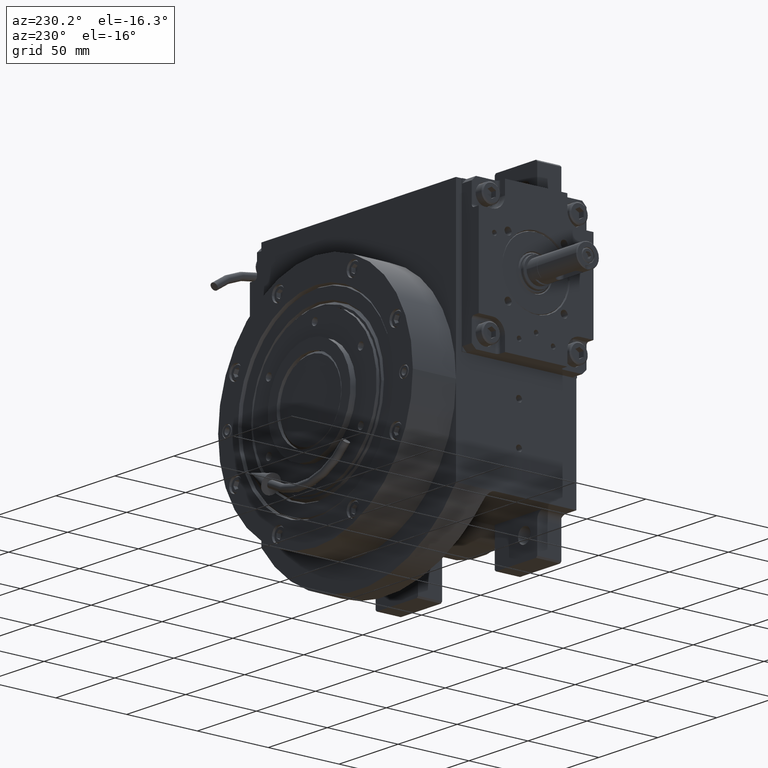
[diagram: clean part render]
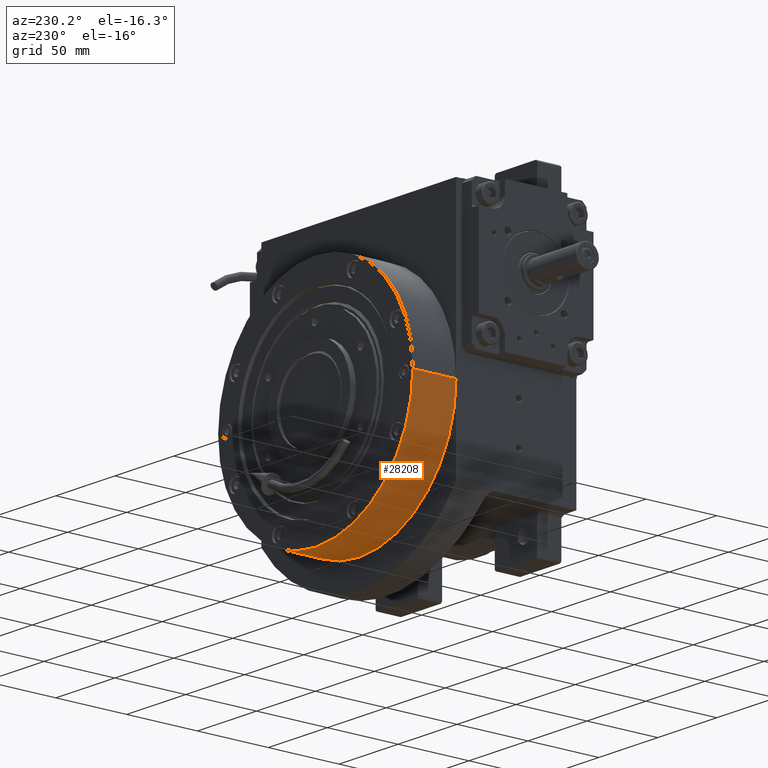
[diagram: same view with one face highlighted and labeled with its STEP entity id]
A machine part, auxiliary view. The second image highlights one B-rep face of the part: STEP entity #28208.
In plain terms, the highlighted cylindrical surface (partial cylindrical patch) has radius 82.5 mm, axis along (0, 1, 0).
Its self-contained STEP definition (entity closure, byte-faithful):
#1393 = AXIS2_PLACEMENT_3D ( 'NONE', #59274, #30482, #24634 ) ;
#1533 = CARTESIAN_POINT ( 'NONE',  ( 0.000000000000000000, 0.000000000000000000, 0.000000000000000000 ) ) ;
#1662 = AXIS2_PLACEMENT_3D ( 'NONE', #56746, #33137, #12467 ) ;
#1780 = EDGE_LOOP ( 'NONE', ( #7516, #18580, #12144, #51405 ) ) ;
#3109 = CARTESIAN_POINT ( 'NONE',  ( 82.49999999999998579, -1.010322486831990379E-14, 0.000000000000000000 ) ) ;
#4820 = EDGE_CURVE ( 'NONE', #7385, #26422, #8313, .T. ) ;
#4902 = VERTEX_POINT ( 'NONE', #12836 ) ;
#7385 = VERTEX_POINT ( 'NONE', #59222 ) ;
#7516 = ORIENTED_EDGE ( 'NONE', *, *, #44457, .T. ) ;
#8313 = LINE ( 'NONE', #3109, #48546 ) ;
#10798 = LINE ( 'NONE', #34691, #27130 ) ;
#12144 = ORIENTED_EDGE ( 'NONE', *, *, #4820, .F. ) ;
#12467 = DIRECTION ( 'NONE',  ( 1.000000000000000000, 0.000000000000000000, 0.000000000000000000 ) ) ;
#12756 = CIRCLE ( 'NONE', #1393, 82.50000000000000000 ) ;
#12836 = CARTESIAN_POINT ( 'NONE',  ( -82.50000000000001421, 2.020633851199993078E-14, 30.49999999999999289 ) ) ;
#18580 = ORIENTED_EDGE ( 'NONE', *, *, #58928, .F. ) ;
#19386 = VERTEX_POINT ( 'NONE', #57383 ) ;
#24634 = DIRECTION ( 'NONE',  ( 1.000000000000000000, 0.000000000000000000, 0.000000000000000000 ) ) ;
#26422 = VERTEX_POINT ( 'NONE', #46921 ) ;
#27130 = VECTOR ( 'NONE', #44380, 1000.000000000000000 ) ;
#28208 = ADVANCED_FACE ( 'NONE', ( #45834 ), #40953, .T. ) ;
#28518 = CIRCLE ( 'NONE', #1662, 82.50000000000000000 ) ;
#30482 = DIRECTION ( 'NONE',  ( 0.000000000000000000, 0.000000000000000000, 1.000000000000000000 ) ) ;
#33137 = DIRECTION ( 'NONE',  ( 0.000000000000000000, 0.000000000000000000, 1.000000000000000000 ) ) ;
#34691 = CARTESIAN_POINT ( 'NONE',  ( -82.50000000000001421, 1.010322486831990379E-14, 0.000000000000000000 ) ) ;
#37055 = DIRECTION ( 'NONE',  ( 0.000000000000000000, 0.000000000000000000, 1.000000000000000000 ) ) ;
#40953 = CYLINDRICAL_SURFACE ( 'NONE', #58785, 82.50000000000000000 ) ;
#41903 = DIRECTION ( 'NONE',  ( 1.000000000000000000, 0.000000000000000000, 0.000000000000000000 ) ) ;
#42216 = DIRECTION ( 'NONE',  ( 0.000000000000000000, 0.000000000000000000, 1.000000000000000000 ) ) ;
#44380 = DIRECTION ( 'NONE',  ( 0.000000000000000000, 0.000000000000000000, 1.000000000000000000 ) ) ;
#44457 = EDGE_CURVE ( 'NONE', #19386, #4902, #10798, .T. ) ;
#45834 = FACE_OUTER_BOUND ( 'NONE', #1780, .T. ) ;
#46921 = CARTESIAN_POINT ( 'NONE',  ( 82.49999999999998579, -1.010300241903009221E-14, 30.49999999999999289 ) ) ;
#48546 = VECTOR ( 'NONE', #37055, 1000.000000000000000 ) ;
#51405 = ORIENTED_EDGE ( 'NONE', *, *, #61847, .T. ) ;
#56746 = CARTESIAN_POINT ( 'NONE',  ( 0.000000000000000000, 0.000000000000000000, 0.000000000000000000 ) ) ;
#57383 = CARTESIAN_POINT ( 'NONE',  ( -82.50000000000001421, 2.020633851199993078E-14, 0.000000000000000000 ) ) ;
#58785 = AXIS2_PLACEMENT_3D ( 'NONE', #1533, #42216, #41903 ) ;
#58928 = EDGE_CURVE ( 'NONE', #26422, #4902, #12756, .T. ) ;
#59222 = CARTESIAN_POINT ( 'NONE',  ( 82.49999999999998579, -1.010300241903009221E-14, 0.000000000000000000 ) ) ;
#59274 = CARTESIAN_POINT ( 'NONE',  ( 0.000000000000000000, 0.000000000000000000, 30.49999999999999289 ) ) ;
#61847 = EDGE_CURVE ( 'NONE', #7385, #19386, #28518, .T. ) ;